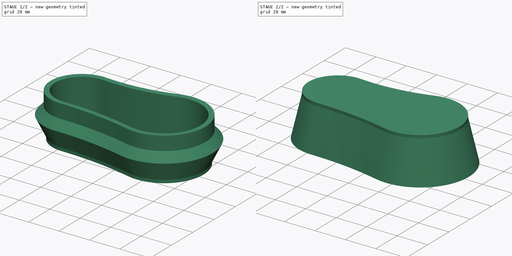
[diagram: build sequence overview — one tinted view per stage of 2, left to right]
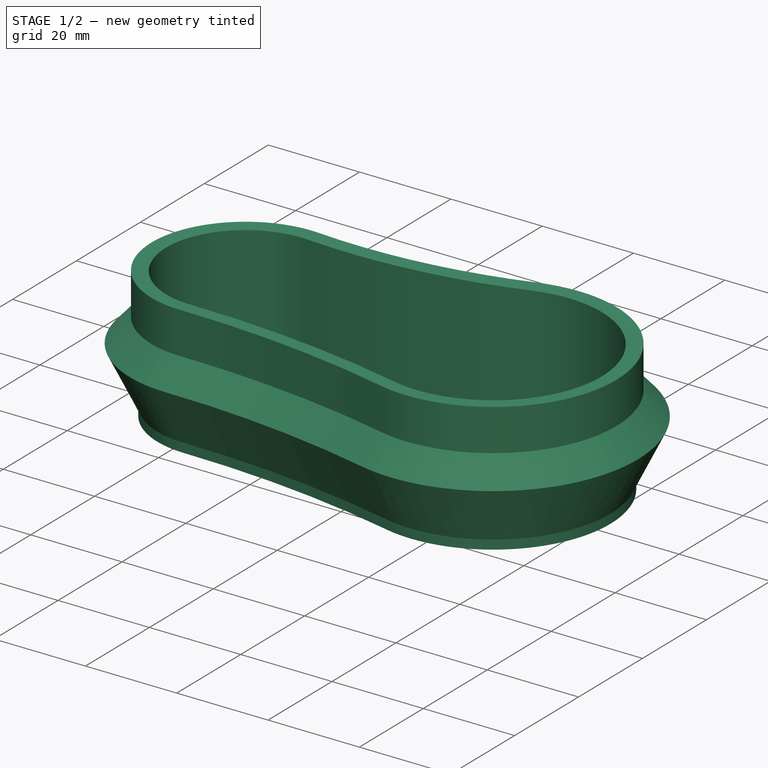
[diagram: stage 1 of 2 — iso view after this stage's code; geometry added in this stage tinted green]
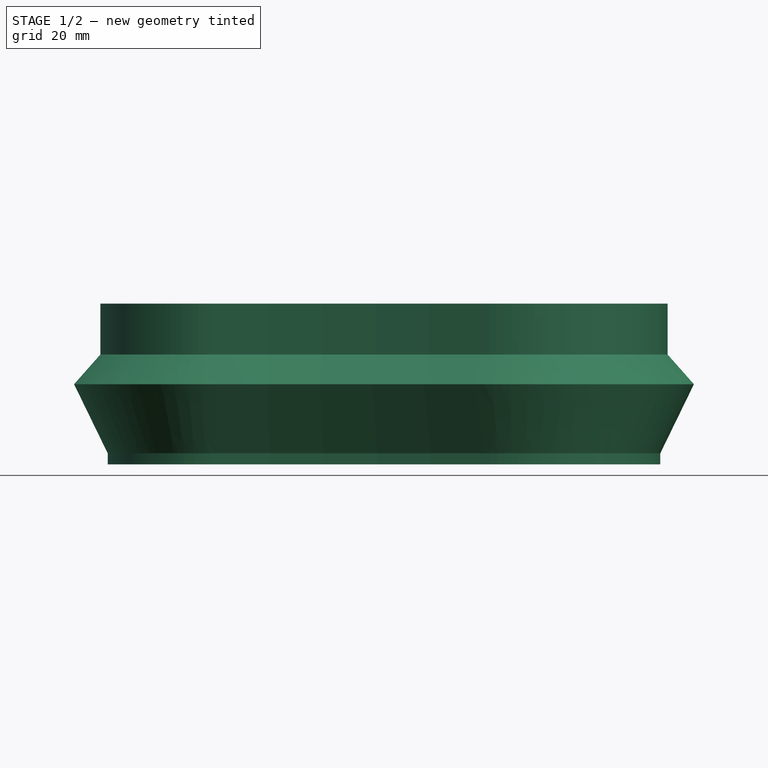
[diagram: stage 1 of 2 — front view after this stage's code; geometry added in this stage tinted green]
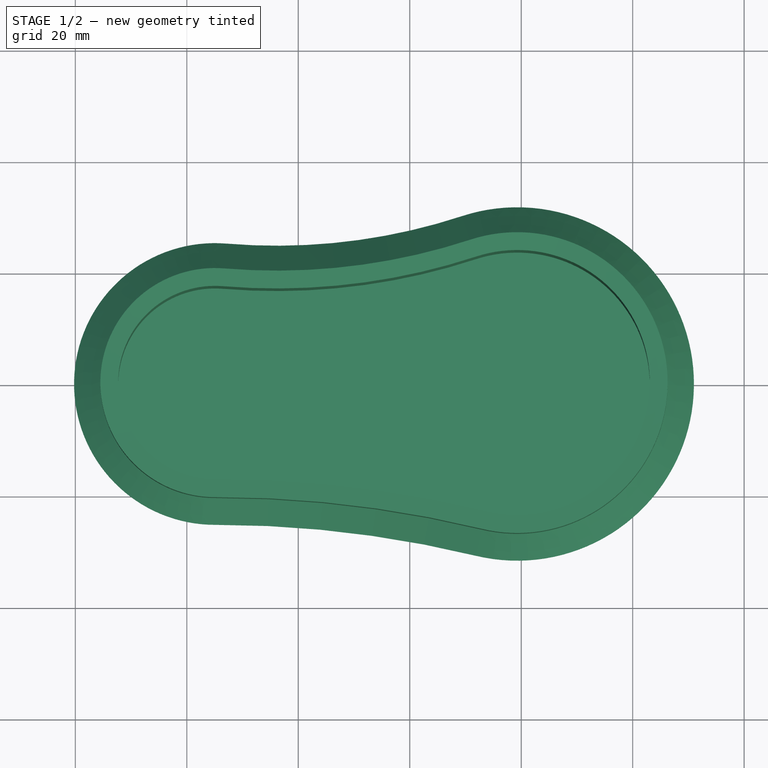
[diagram: stage 1 of 2 — top view after this stage's code; geometry added in this stage tinted green]
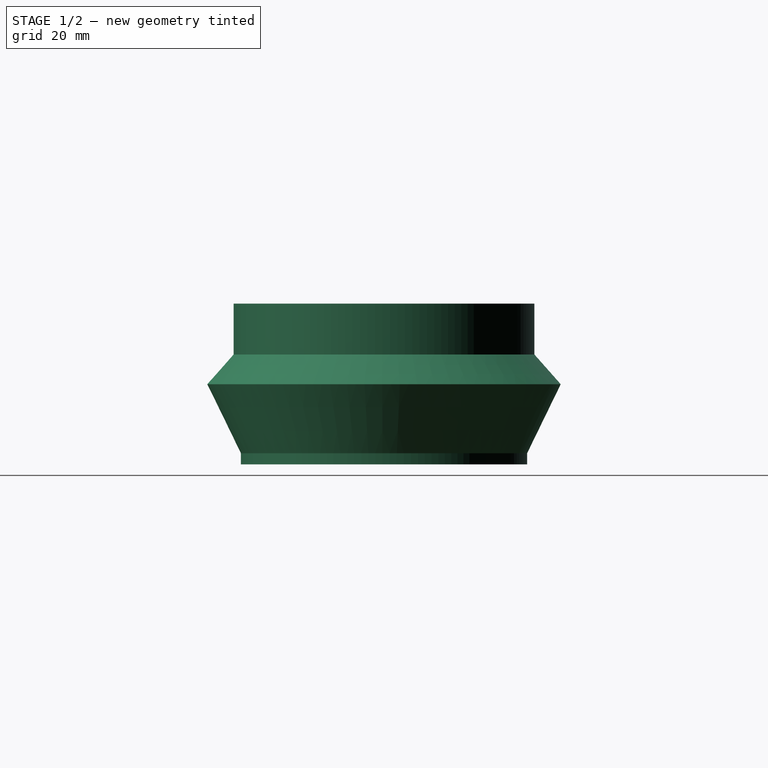
[diagram: stage 1 of 2 — right view after this stage's code; geometry added in this stage tinted green]
FCSTD DOCUMENT  (FreeCAD 0.21RUnknown)
Label: part9.2
License: All rights reserved
LicenseURL: http://en.wikipedia.org/wiki/All_rights_reserved
objects: Sketcher::SketchObject×3, PartDesign::Pad×2, PartDesign::AdditivePipe×2, PartDesign::Body×2, PartDesign::SubShapeBinder×2, Part::Part2DObjectPython×1
note: 16 computed .brp shape members not serialized (recipe doc carries the construction recipe); baked Part::Feature solids carry a one-line shape summary decoded from their .brp

FEATURE [Sketcher::SketchObject] Sketch
  FullyConstrained = false
  MapMode = 5
  Support = -> [XY_Plane]
  sketch-geometry (4):
    g0: ArcOfCircle CenterX=-34.9492 CenterY=0 CenterZ=0 NormalX=0 NormalY=0 NormalZ=1 AngleXU=0 Radius=19.244 StartAngle=1.48674 EndAngle=4.71408
    g1: ArcOfCircle CenterX=19.2771 CenterY=0 CenterZ=0 NormalX=0 NormalY=0 NormalZ=1 AngleXU=0 Radius=25.6774 StartAngle=4.47457 EndAngle=8.17109
    g2: ArcOfCircle CenterX=-23.8718 CenterY=131.48 CenterZ=0 NormalX=0 NormalY=0 NormalZ=1 AngleXU=0 Radius=112.702 StartAngle=4.62834 EndAngle=5.02949
    g3: ArcOfCircle CenterX=-34.5742 CenterY=-222.153 CenterZ=0 NormalX=0 NormalY=0 NormalZ=1 AngleXU=0 Radius=202.909 StartAngle=1.33298 EndAngle=1.57248
  constraints (6):
    c: PointOnObject(g0,g-1)
    c: PointOnObject(g1,g-1)
    c: Tangent(g0,g3) = 1.5708
    c: Tangent(g0,g2) = 1.5708
    c: Tangent(g1,g2) = 1.5708
    c: Tangent(g1,g3) = 1.5708
FEATURE [PartDesign::Pad] Pad
  Direction = (0,0,1)
  Length = 2
  Length2 = 10
  Profile = -> Sketch
  ReferenceAxis = -> Sketch [N_Axis]
  Type = 0
FEATURE [Sketcher::SketchObject] Sketch001
  ExternalGeometry = -> [Pad]
  FullyConstrained = false
  MapMode = 5
  Placement = pos=(0,0,0) rot=(1,0,0;1.5708rad)
  Support = -> [XZ_Plane]
  sketch-geometry (6):
    g0: LineSegment StartX=-54.1932 StartY=2 StartZ=0 EndX=-60.2258 EndY=14.3904 EndZ=0
    g1: LineSegment StartX=-60.2258 StartY=14.3904 StartZ=0 EndX=-55.5067 EndY=19.7184 EndZ=0
    g2: LineSegment StartX=-55.5067 StartY=19.7184 StartZ=0 EndX=-55.5067 EndY=28.854 EndZ=0
    g3: LineSegment StartX=-55.5067 StartY=28.854 StartZ=0 EndX=-52.31 EndY=28.6919 EndZ=0
    g4: LineSegment StartX=-52.31 StartY=28.6919 StartZ=0 EndX=-52.31 EndY=2 EndZ=0
    g5: LineSegment StartX=-52.31 StartY=2 StartZ=0 EndX=-54.1932 EndY=2 EndZ=0
  constraints (10):
    c: Coincident(g-3,g0)
    c: Coincident(g0,g1)
    c: Coincident(g1,g2)
    c: Vertical(g2)
    c: Coincident(g2,g3)
    c: Coincident(g3,g4)
    c: PointOnObject(g4,g-3)
    c: Vertical(g4)
    c: Coincident(g4,g5)
    c: Coincident(g5,g0)
FEATURE [PartDesign::AdditivePipe] AdditivePipe
  AuxilleryCurvelinear = true
  AuxillerySpineTangent = false
  BaseFeature = -> Pad
  Binormal = (0,0,0)
  Mode = 0
  Profile = -> Sketch001
  Spine = -> Pad [Edge10,Edge7,Edge4,Edge12]
  SpineTangent = false
  Transformation = 0
  Transition = 0
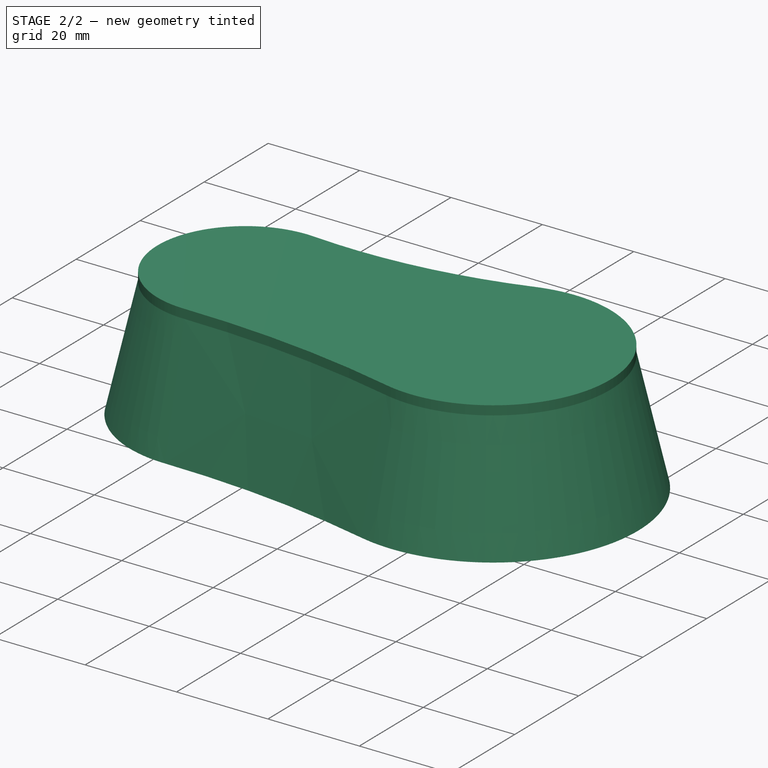
[diagram: stage 2 of 2 — iso view after this stage's code; geometry added in this stage tinted green]
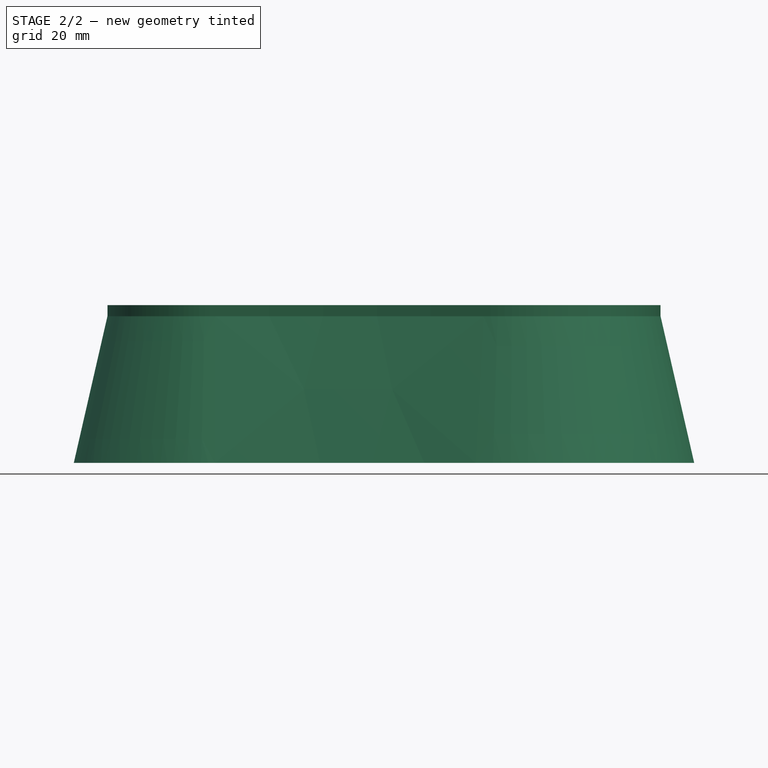
[diagram: stage 2 of 2 — front view after this stage's code; geometry added in this stage tinted green]
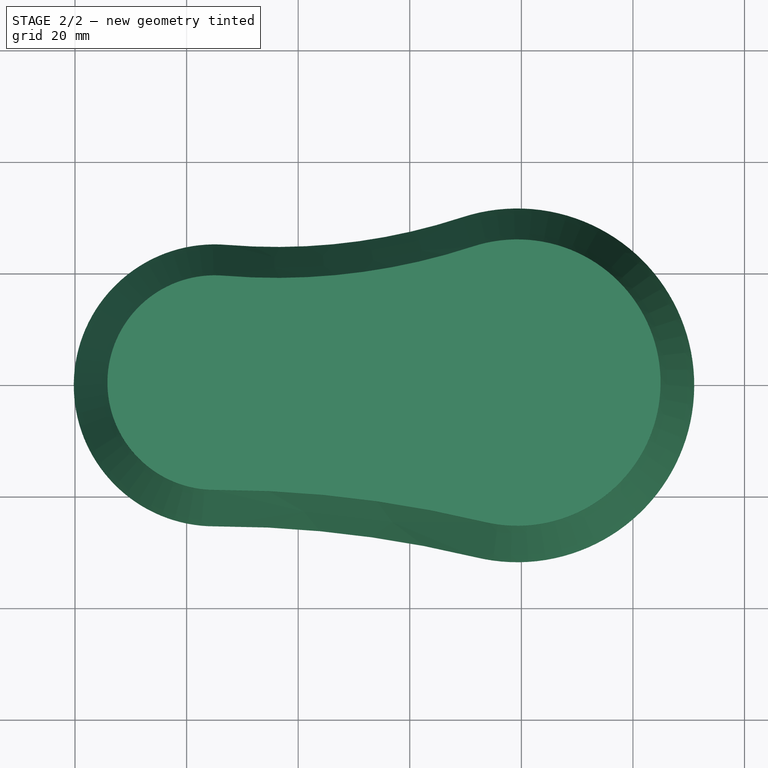
[diagram: stage 2 of 2 — top view after this stage's code; geometry added in this stage tinted green]
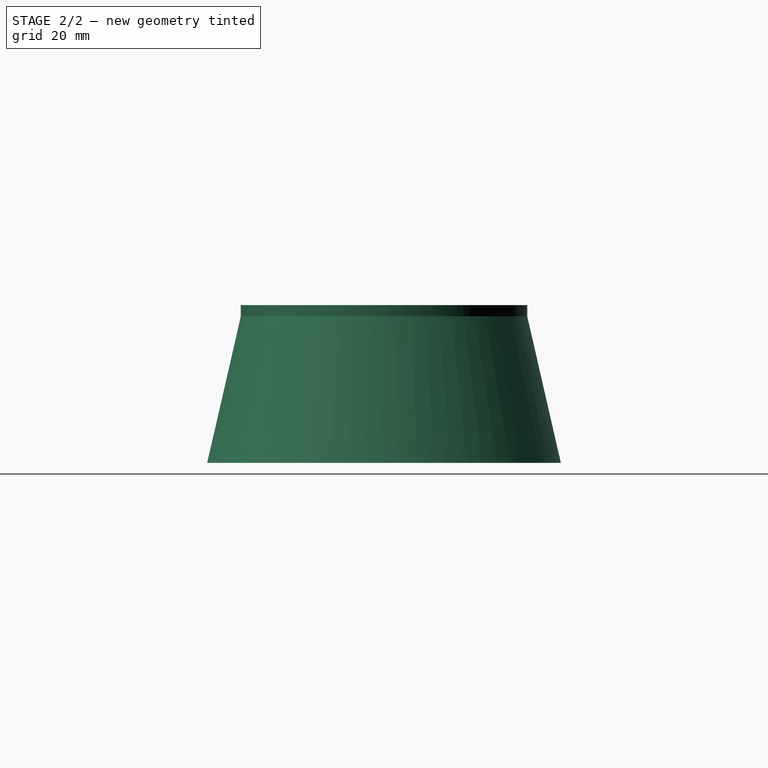
[diagram: stage 2 of 2 — right view after this stage's code; geometry added in this stage tinted green]
FEATURE [PartDesign::Body] Body  label="bottom"
  Group = -> [Sketch,Pad,Sketch001,AdditivePipe]
  Origin = -> Origin
  Tip = -> AdditivePipe
FEATURE [PartDesign::SubShapeBinder] Binder
  BindCopyOnChange = 0
  BindMode = 0
  ClaimChildren = false
  Context = -> Body001 [Binder.]
  Fuse = false
  MakeFace = true
  OffsetFill = false
  OffsetIntersection = false
  OffsetJoinType = 0
  OffsetOpenResult = false
  PartialLoad = false
  Relative = true
  Support = -> [Body[AdditivePipe.Sketch001.]]
  _Version = 2
FEATURE [Sketcher::SketchObject] Sketch002
  ExternalGeometry = -> [Binder]
  FullyConstrained = true
  MapMode = 5
  Placement = pos=(0,0,0) rot=(1,0,0;1.5708rad)
  Support = -> [XZ_Plane001]
  sketch-geometry (6):
    g0: LineSegment StartX=-52.31 StartY=28.8818 StartZ=0 EndX=-55.7067 EndY=29.054 EndZ=0
    g1: LineSegment StartX=-55.7067 StartY=29.054 StartZ=0 EndX=-55.7067 EndY=19.6926 EndZ=0
    g2: LineSegment StartX=-55.7067 StartY=19.6926 StartZ=0 EndX=-60.2258 EndY=14.5904 EndZ=0
    g3: LineSegment StartX=-60.2258 StartY=14.5904 StartZ=0 EndX=-54.1932 EndY=40.8818 EndZ=0
    g4: LineSegment StartX=-54.1932 StartY=40.8818 StartZ=0 EndX=-52.31 EndY=40.8818 EndZ=0
    g5: LineSegment StartX=-52.31 StartY=40.8818 StartZ=0 EndX=-52.31 EndY=28.8818 EndZ=0
  constraints (18):
    c: Coincident(g0,g1)
    c: Vertical(g1)
    c: Coincident(g1,g2)
    c: Coincident(g2,g3)
    c: Coincident(g3,g4)
    c: Coincident(g4,g5)
    c: Coincident(g5,g0)
    c: Vertical(g5)
    c: Vertical(g-6,g0)
    c: DistanceX(g0,g-7) = 0.2
    c: Parallel(g-9,g0)
    c: DistanceY(g-9,g0) = 0.2
    c: Parallel(g2,g-10)
    c: Vertical(g2,g-10)
    c: DistanceY(g-10,g2) = 0.2
    c: Vertical(g3,g-8)
    c: Horizontal(g4)
    c: DistanceY(g5,g5) = 12
FEATURE [PartDesign::SubShapeBinder] Binder001
  BindCopyOnChange = 0
  BindMode = 0
  ClaimChildren = false
  Context = -> Body001 [Binder001.]
  Fuse = false
  MakeFace = true
  OffsetFill = false
  OffsetIntersection = false
  OffsetJoinType = 0
  OffsetOpenResult = false
  PartialLoad = false
  Relative = true
  Support = -> [Body[AdditivePipe.Edge19,AdditivePipe.Edge23,AdditivePipe.Edge13,AdditivePipe.Edge16]]
  _Version = 2
FEATURE [PartDesign::AdditivePipe] AdditivePipe001
  AuxilleryCurvelinear = true
  AuxillerySpineTangent = false
  Binormal = (0,0,0)
  Mode = 0
  Placement = pos=(0,0,0) rot=(1,0,0;1.5708rad)
  Profile = -> Sketch002
  Spine = -> Binder001 [Edge3,Edge4,Edge1,Edge2]
  SpineTangent = false
  Transformation = 0
  Transition = 0
FEATURE [Part::Part2DObjectPython] Clone2D  label="Sketch (2D)"  # Draft 2D object (typed FeaturePython)
  AttachmentOffset = pos=(0,0,0) rot=(1,0,0;3.14159rad)
  Fuse = false
  MapMode = 5
  Objects = -> [Sketch]
  Placement = pos=(0,-2.3e-15,40.8818) rot=(0,0,1;0rad)
  Scale = (1,1,1)
  Support = -> [AdditivePipe001]
FEATURE [PartDesign::Pad] Pad001
  BaseFeature = -> AdditivePipe001
  Direction = (0,1e-16,1)
  Length = 2
  Length2 = 10
  Placement = pos=(0,0,0) rot=(1,0,0;1.5708rad)
  Profile = -> Clone2D
  ReferenceAxis = -> Clone2D [N_Axis]
  Type = 0
FEATURE [PartDesign::Body] Body001  label="top"
  Group = -> [Binder,Sketch002,Binder001,AdditivePipe001,Clone2D,Pad001]
  Origin = -> Origin001
  Tip = -> Pad001
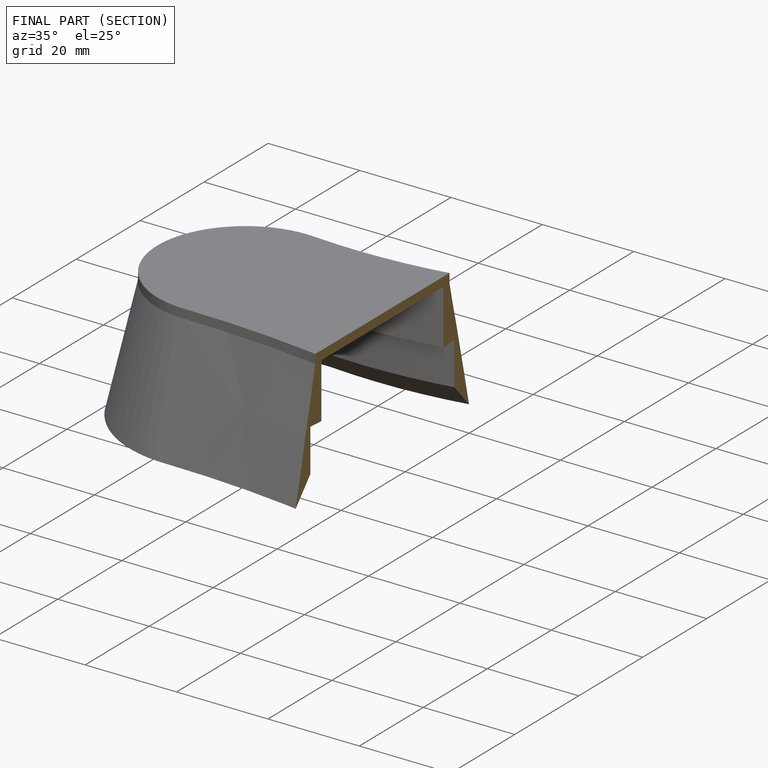
[diagram: finished part — half-section view (interior)]
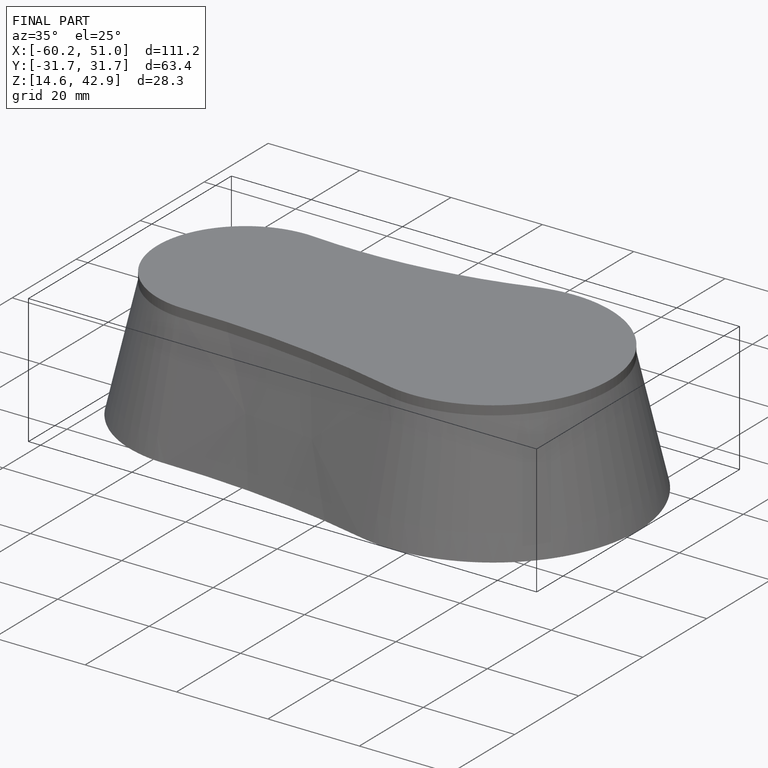
[diagram: finished part — iso view with bounding-box wireframe]
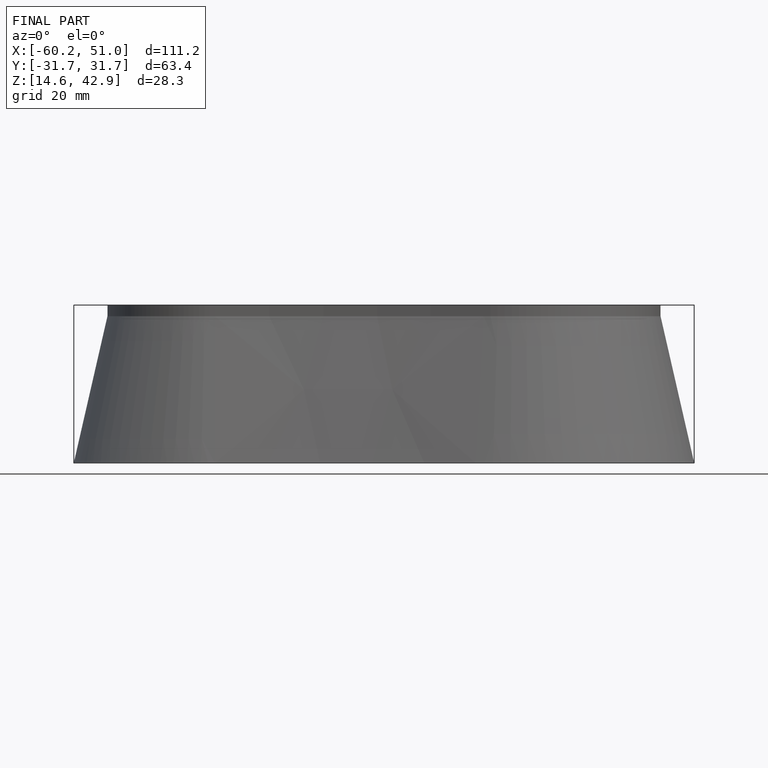
[diagram: finished part — front view with bounding-box wireframe]
